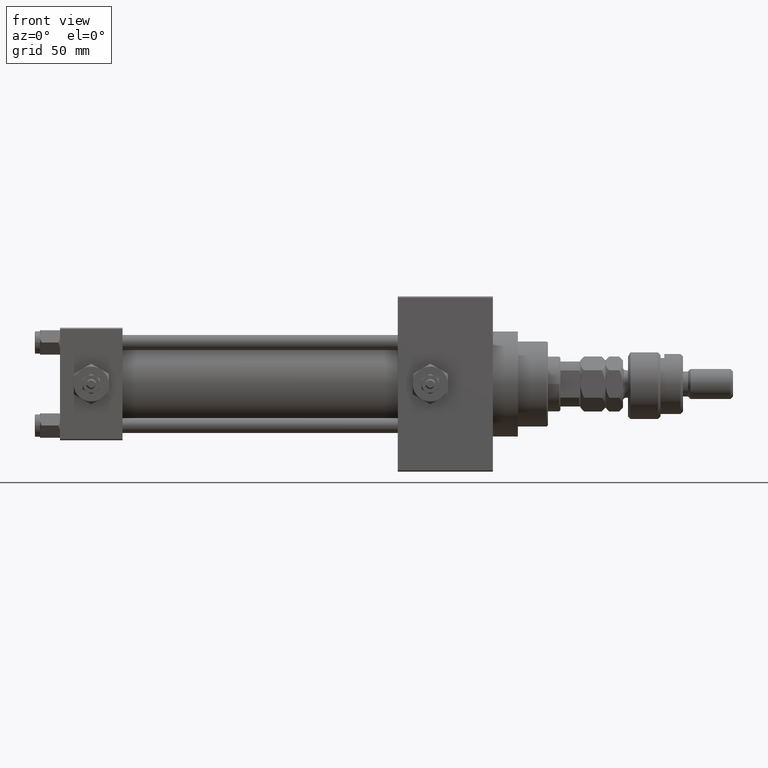
[diagram: clean part render]
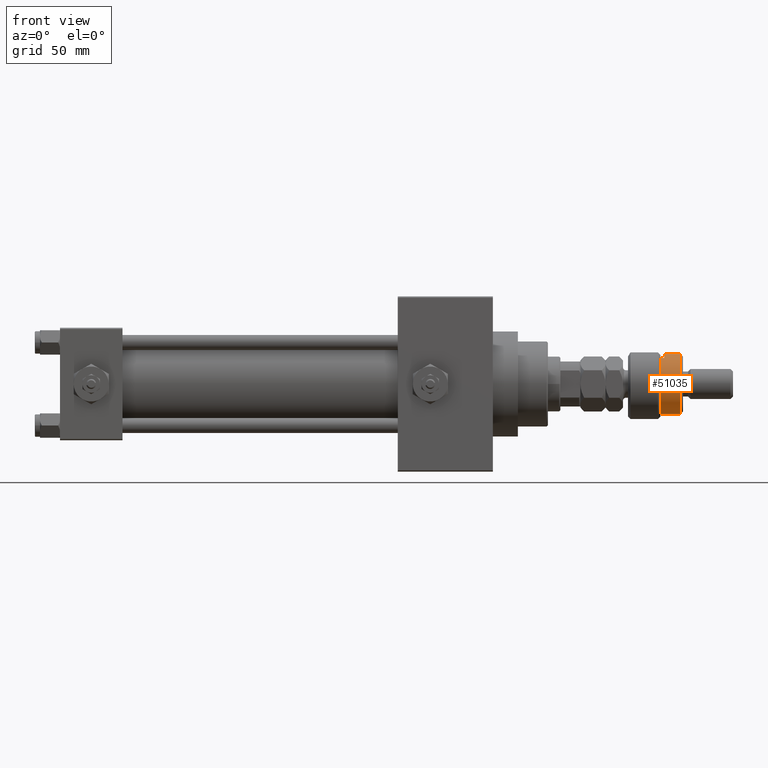
[diagram: same view with one face highlighted and labeled with its STEP entity id]
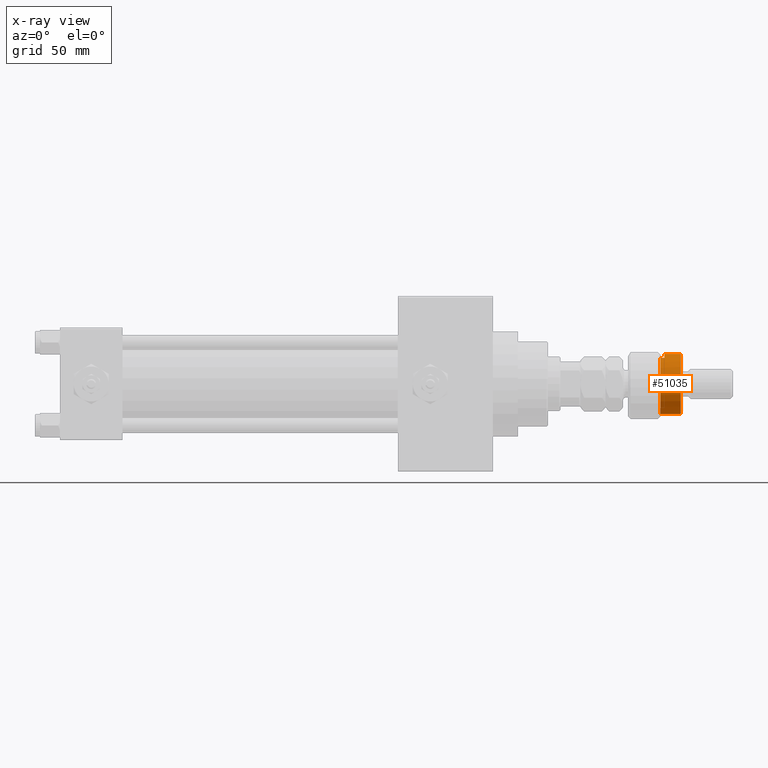
[diagram: x-ray of the same camera — body ghosted, the highlighted face saturated]
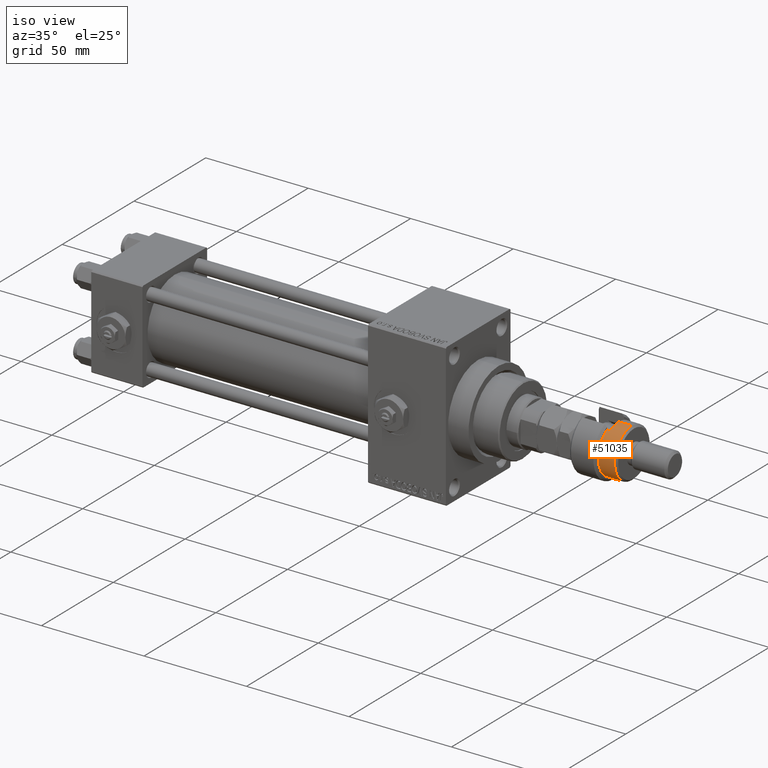
[diagram: same view with one face highlighted and labeled with its STEP entity id]
A machine part, front view. The second image highlights one B-rep face of the part: STEP entity #51035.
The next image is the same camera in x-ray: the body ghosted, the highlighted face saturated — about 0% of this face is hidden behind the body in this view.
A second angle (iso view) of the same face is appended — the face is thin or edge-on in the first view.
In plain terms, the highlighted cylindrical surface (edge-blend (fillet) strip) has radius 12 mm, axis along (-1, -0, 0).
Its self-contained STEP definition (entity closure, byte-faithful):
#90 = ORIENTED_EDGE ( 'NONE', *, *, #15022, .T. ) ;
#269 = CARTESIAN_POINT ( 'NONE',  ( 12.00000000000000178, 1.469576158976824144E-15, 13.00000000000000000 ) ) ;
#608 = CARTESIAN_POINT ( 'NONE',  ( -12.00000000000000178, 0.000000000000000000, 22.00000000000000000 ) ) ;
#1056 = DIRECTION ( 'NONE',  ( -1.000000000000000000, 0.000000000000000000, 0.000000000000000000 ) ) ;
#1608 = VECTOR ( 'NONE', #32931, 1000.000000000000000 ) ;
#2315 = CARTESIAN_POINT ( 'NONE',  ( 0.000000000000000000, 0.000000000000000000, 13.00000000000000000 ) ) ;
#4500 = CARTESIAN_POINT ( 'NONE',  ( -12.00000000000000178, 0.000000000000000000, 20.99999999999998224 ) ) ;
#6130 = VERTEX_POINT ( 'NONE', #269 ) ;
#6271 = EDGE_CURVE ( 'NONE', #18596, #6130, #15037, .T. ) ;
#8724 = AXIS2_PLACEMENT_3D ( 'NONE', #41495, #13136, #1056 ) ;
#9004 = LINE ( 'NONE', #608, #1608 ) ;
#11063 = CARTESIAN_POINT ( 'NONE',  ( 12.00000000000000178, 1.469576158976824144E-15, 22.00000000000000000 ) ) ;
#13136 = DIRECTION ( 'NONE',  ( -0.000000000000000000, -0.000000000000000000, -1.000000000000000000 ) ) ;
#13786 = DIRECTION ( 'NONE',  ( 1.000000000000000000, 0.000000000000000000, 0.000000000000000000 ) ) ;
#13895 = DIRECTION ( 'NONE',  ( 1.000000000000000000, 0.000000000000000000, 0.000000000000000000 ) ) ;
#15022 = EDGE_CURVE ( 'NONE', #42274, #18596, #51246, .T. ) ;
#15026 = LINE ( 'NONE', #11063, #47303 ) ;
#15037 = CIRCLE ( 'NONE', #16715, 12.00000000000000178 ) ;
#15285 = DIRECTION ( 'NONE',  ( -0.000000000000000000, -0.000000000000000000, -1.000000000000000000 ) ) ;
#15427 = CARTESIAN_POINT ( 'NONE',  ( 12.00000000000000178, 1.469576158976824144E-15, 20.99999999999998224 ) ) ;
#15553 = EDGE_CURVE ( 'NONE', #33711, #20595, #9004, .T. ) ;
#15644 = CARTESIAN_POINT ( 'NONE',  ( -10.39230484541326582, -5.999999999999998224, 14.50000000000000000 ) ) ;
#16715 = AXIS2_PLACEMENT_3D ( 'NONE', #2315, #22806, #13895 ) ;
#18596 = VERTEX_POINT ( 'NONE', #36519 ) ;
#19394 = EDGE_CURVE ( 'NONE', #45809, #33711, #47765, .T. ) ;
#19455 = ORIENTED_EDGE ( 'NONE', *, *, #6271, .T. ) ;
#20595 = VERTEX_POINT ( 'NONE', #29505 ) ;
#21022 = FACE_OUTER_BOUND ( 'NONE', #50454, .T. ) ;
#22806 = DIRECTION ( 'NONE',  ( 0.000000000000000000, 0.000000000000000000, 1.000000000000000000 ) ) ;
#24401 = ORIENTED_EDGE ( 'NONE', *, *, #32768, .F. ) ;
#26504 = ORIENTED_EDGE ( 'NONE', *, *, #50622, .F. ) ;
#27349 = DIRECTION ( 'NONE',  ( -0.000000000000000000, -0.000000000000000000, -1.000000000000000000 ) ) ;
#27939 = DIRECTION ( 'NONE',  ( -1.000000000000000000, 0.000000000000000000, 0.000000000000000000 ) ) ;
#28147 = ORIENTED_EDGE ( 'NONE', *, *, #15553, .T. ) ;
#28720 = DIRECTION ( 'NONE',  ( 0.000000000000000000, 0.000000000000000000, -1.000000000000000000 ) ) ;
#29505 = CARTESIAN_POINT ( 'NONE',  ( -12.00000000000000178, 0.000000000000000000, 14.50000000000000000 ) ) ;
#32768 = EDGE_CURVE ( 'NONE', #45809, #6130, #15026, .T. ) ;
#32931 = DIRECTION ( 'NONE',  ( -0.000000000000000000, -0.000000000000000000, -1.000000000000000000 ) ) ;
#33486 = CARTESIAN_POINT ( 'NONE',  ( 0.000000000000000000, 0.000000000000000000, 20.99999999999998224 ) ) ;
#33711 = VERTEX_POINT ( 'NONE', #4500 ) ;
#34705 = CARTESIAN_POINT ( 'NONE',  ( -10.39230484541326760, -6.000000000000000000, 22.00000000000000000 ) ) ;
#36385 = AXIS2_PLACEMENT_3D ( 'NONE', #40530, #28720, #27939 ) ;
#36519 = CARTESIAN_POINT ( 'NONE',  ( -10.39230484541326760, -6.000000000000000000, 13.00000000000000000 ) ) ;
#36819 = VECTOR ( 'NONE', #15285, 1000.000000000000000 ) ;
#38572 = AXIS2_PLACEMENT_3D ( 'NONE', #33486, #49757, #13786 ) ;
#40530 = CARTESIAN_POINT ( 'NONE',  ( 0.000000000000000000, 0.000000000000000000, 14.50000000000000000 ) ) ;
#41495 = CARTESIAN_POINT ( 'NONE',  ( 0.000000000000000000, 0.000000000000000000, 22.00000000000000000 ) ) ;
#42274 = VERTEX_POINT ( 'NONE', #15644 ) ;
#44038 = ORIENTED_EDGE ( 'NONE', *, *, #19394, .T. ) ;
#45809 = VERTEX_POINT ( 'NONE', #15427 ) ;
#47292 = CIRCLE ( 'NONE', #36385, 12.00000000000000178 ) ;
#47303 = VECTOR ( 'NONE', #27349, 1000.000000000000000 ) ;
#47765 = CIRCLE ( 'NONE', #38572, 12.00000000000000178 ) ;
#49369 = CYLINDRICAL_SURFACE ( 'NONE', #8724, 12.00000000000000178 ) ;
#49757 = DIRECTION ( 'NONE',  ( 0.000000000000000000, 0.000000000000000000, -1.000000000000000000 ) ) ;
#50454 = EDGE_LOOP ( 'NONE', ( #24401, #44038, #28147, #26504, #90, #19455 ) ) ;
#50622 = EDGE_CURVE ( 'NONE', #42274, #20595, #47292, .T. ) ;
#51035 = ADVANCED_FACE ( 'NONE', ( #21022 ), #49369, .T. ) ;
#51246 = LINE ( 'NONE', #34705, #36819 ) ;